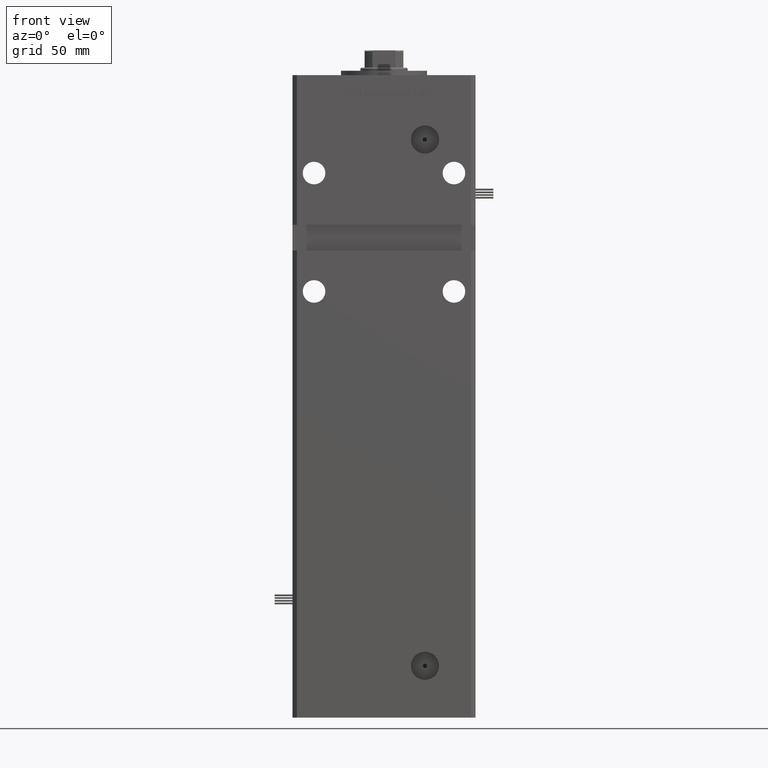
[diagram: clean part render]
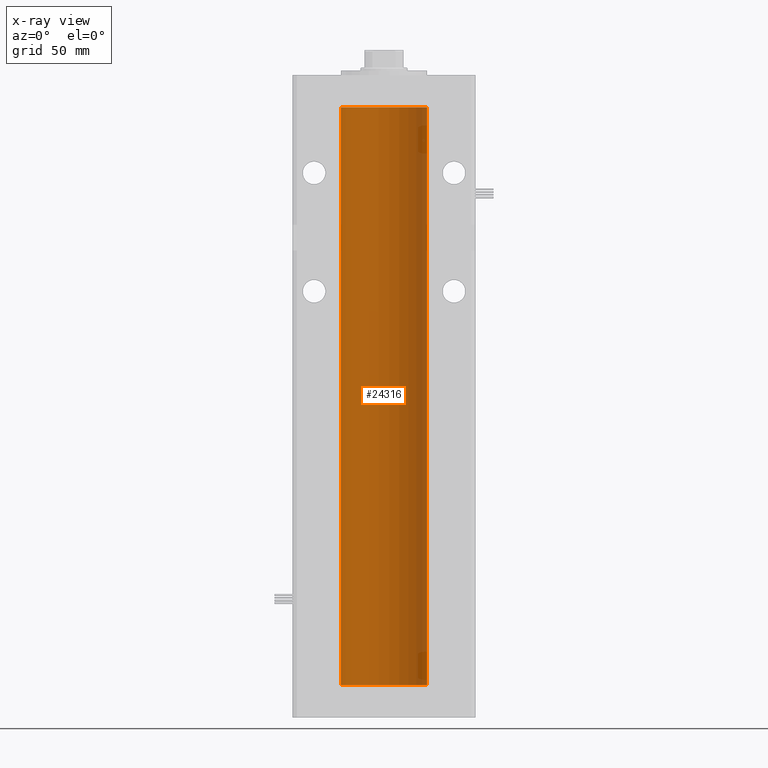
[diagram: x-ray — body ghosted, one internal face saturated and labeled with its STEP entity id]
A machine part, front view, then the same camera in x-ray: the body is ghosted and one INTERNAL B-rep face — a face not visible from any outside direction — is saturated and labeled: STEP entity #24316.
In plain terms, the highlighted cylindrical surface (partial cylindrical patch) has radius 20 mm, axis along (-0, -0, -1).
Its self-contained STEP definition (entity closure, byte-faithful):
#1440 = VECTOR ( 'NONE', #39171, 1000.000000000000000 ) ;
#2354 = ORIENTED_EDGE ( 'NONE', *, *, #33611, .F. ) ;
#4170 = ORIENTED_EDGE ( 'NONE', *, *, #4858, .T. ) ;
#4858 = EDGE_CURVE ( 'NONE', #41405, #48232, #51713, .T. ) ;
#6432 = CARTESIAN_POINT ( 'NONE',  ( -20.00000000000000000, 0.000000000000000000, 0.000000000000000000 ) ) ;
#7123 = DIRECTION ( 'NONE',  ( -0.000000000000000000, -0.000000000000000000, -1.000000000000000000 ) ) ;
#8515 = EDGE_CURVE ( 'NONE', #29881, #41405, #45803, .T. ) ;
#8836 = DIRECTION ( 'NONE',  ( -1.000000000000000000, 0.000000000000000000, 0.000000000000000000 ) ) ;
#11220 = DIRECTION ( 'NONE',  ( 1.000000000000000000, 0.000000000000000000, 0.000000000000000000 ) ) ;
#13951 = AXIS2_PLACEMENT_3D ( 'NONE', #38413, #19468, #11220 ) ;
#13986 = ORIENTED_EDGE ( 'NONE', *, *, #8515, .T. ) ;
#16673 = CIRCLE ( 'NONE', #13951, 20.00000000000000000 ) ;
#19468 = DIRECTION ( 'NONE',  ( -0.000000000000000000, 0.000000000000000000, 1.000000000000000000 ) ) ;
#19482 = AXIS2_PLACEMENT_3D ( 'NONE', #30938, #42641, #25555 ) ;
#21205 = AXIS2_PLACEMENT_3D ( 'NONE', #52037, #52609, #8836 ) ;
#21839 = CARTESIAN_POINT ( 'NONE',  ( 20.00000000000000000, 2.449293598294706513E-15, 268.5000000000000000 ) ) ;
#22679 = LINE ( 'NONE', #21839, #1440 ) ;
#24244 = EDGE_CURVE ( 'NONE', #36814, #48232, #16673, .T. ) ;
#24316 = ADVANCED_FACE ( 'NONE', ( #30435 ), #47483, .F. ) ;
#25555 = DIRECTION ( 'NONE',  ( 1.000000000000000000, 0.000000000000000000, 0.000000000000000000 ) ) ;
#29881 = VERTEX_POINT ( 'NONE', #51046 ) ;
#30435 = FACE_OUTER_BOUND ( 'NONE', #51691, .T. ) ;
#30938 = CARTESIAN_POINT ( 'NONE',  ( 0.000000000000000000, 0.000000000000000000, 268.5000000000000000 ) ) ;
#33611 = EDGE_CURVE ( 'NONE', #29881, #36814, #22679, .T. ) ;
#36814 = VERTEX_POINT ( 'NONE', #44467 ) ;
#37798 = CARTESIAN_POINT ( 'NONE',  ( -20.00000000000000000, 0.000000000000000000, 268.5000000000000000 ) ) ;
#38085 = CARTESIAN_POINT ( 'NONE',  ( -20.00000000000000000, 0.000000000000000000, 268.5000000000000000 ) ) ;
#38413 = CARTESIAN_POINT ( 'NONE',  ( 0.000000000000000000, 0.000000000000000000, 0.000000000000000000 ) ) ;
#39171 = DIRECTION ( 'NONE',  ( -0.000000000000000000, -0.000000000000000000, -1.000000000000000000 ) ) ;
#39316 = VECTOR ( 'NONE', #7123, 1000.000000000000000 ) ;
#41405 = VERTEX_POINT ( 'NONE', #37798 ) ;
#42641 = DIRECTION ( 'NONE',  ( -0.000000000000000000, 0.000000000000000000, 1.000000000000000000 ) ) ;
#44467 = CARTESIAN_POINT ( 'NONE',  ( 20.00000000000000000, 2.449293598294706513E-15, 0.000000000000000000 ) ) ;
#45803 = CIRCLE ( 'NONE', #19482, 20.00000000000000000 ) ;
#47483 = CYLINDRICAL_SURFACE ( 'NONE', #21205, 20.00000000000000000 ) ;
#48232 = VERTEX_POINT ( 'NONE', #6432 ) ;
#51033 = ORIENTED_EDGE ( 'NONE', *, *, #24244, .F. ) ;
#51046 = CARTESIAN_POINT ( 'NONE',  ( 20.00000000000000000, 2.449293598294706513E-15, 268.5000000000000000 ) ) ;
#51691 = EDGE_LOOP ( 'NONE', ( #2354, #13986, #4170, #51033 ) ) ;
#51713 = LINE ( 'NONE', #38085, #39316 ) ;
#52037 = CARTESIAN_POINT ( 'NONE',  ( 0.000000000000000000, 0.000000000000000000, 268.5000000000000000 ) ) ;
#52609 = DIRECTION ( 'NONE',  ( -0.000000000000000000, -0.000000000000000000, -1.000000000000000000 ) ) ;